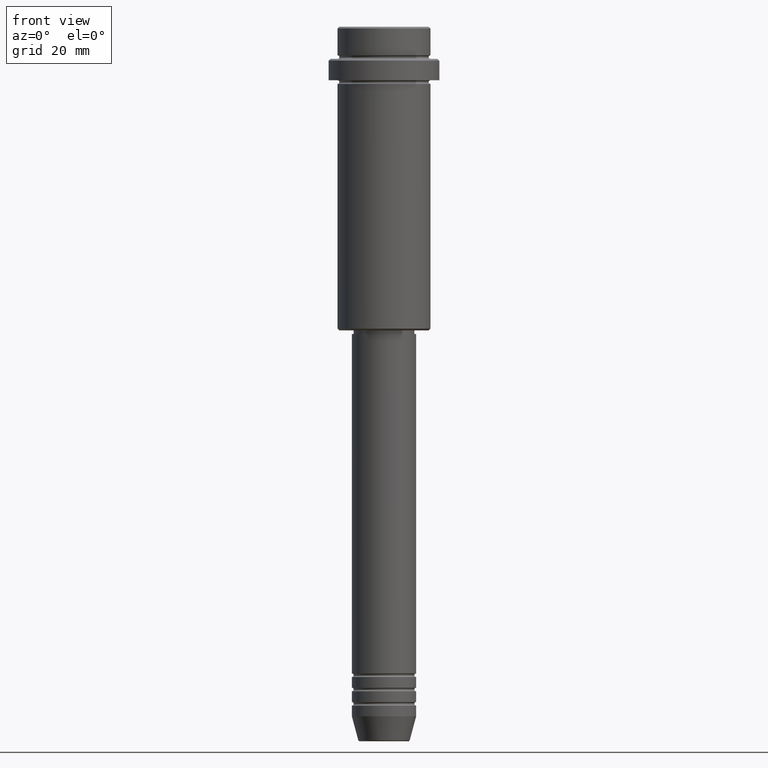
[diagram: clean part render]
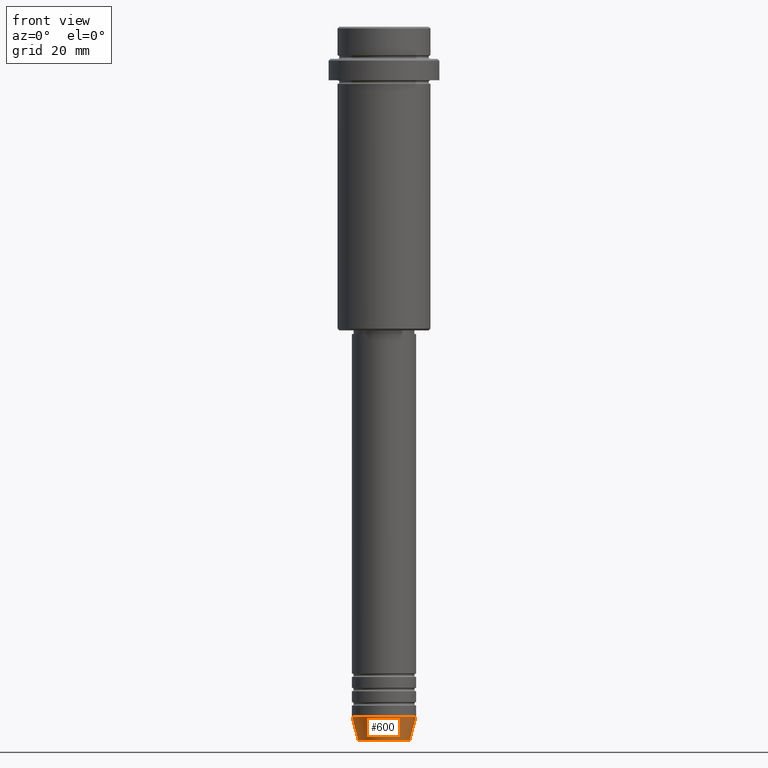
[diagram: same view with one face highlighted and labeled with its STEP entity id]
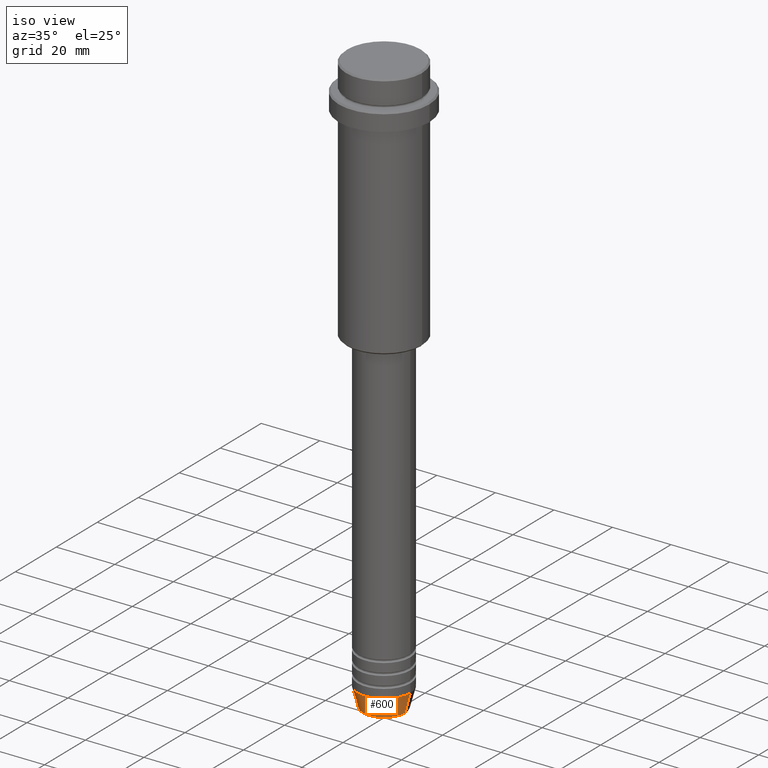
[diagram: same view with one face highlighted and labeled with its STEP entity id]
A machine part, front view. The second image highlights one B-rep face of the part: STEP entity #600.
A second angle (iso view) of the same face is appended — the face is thin or edge-on in the first view.
In plain terms, the highlighted conical surface has half-angle 15 deg.
Its self-contained STEP definition (entity closure, byte-faithful):
#47 = FACE_OUTER_BOUND ( 'NONE', #1254, .T. ) ;
#69 = ORIENTED_EDGE ( 'NONE', *, *, #789, .T. ) ;
#137 = CARTESIAN_POINT ( 'NONE',  ( -7.223655072137194821, 9.934123627281767082E-16, -199.6294095225512706 ) ) ;
#229 = EDGE_CURVE ( 'NONE', #731, #449, #576, .T. ) ;
#233 = CIRCLE ( 'NONE', #410, 7.223655072137194821 ) ;
#275 = LINE ( 'NONE', #366, #325 ) ;
#281 = CARTESIAN_POINT ( 'NONE',  ( 0.000000000000000000, 0.000000000000000000, -199.6294095225512706 ) ) ;
#325 = VECTOR ( 'NONE', #1161, 1000.000000000000114 ) ;
#331 = CONICAL_SURFACE ( 'NONE', #752, 9.000000000000000000, 0.2617993877991491303 ) ;
#340 = DIRECTION ( 'NONE',  ( -0.000000000000000000, -0.000000000000000000, 1.000000000000000000 ) ) ;
#366 = CARTESIAN_POINT ( 'NONE',  ( 9.000000000000000000, 0.000000000000000000, -193.0000000000000000 ) ) ;
#410 = AXIS2_PLACEMENT_3D ( 'NONE', #281, #1134, #914 ) ;
#414 = VECTOR ( 'NONE', #1138, 1000.000000000000114 ) ;
#436 = CARTESIAN_POINT ( 'NONE',  ( 0.000000000000000000, 0.000000000000000000, -193.0000000000000000 ) ) ;
#449 = VERTEX_POINT ( 'NONE', #1235 ) ;
#572 = DIRECTION ( 'NONE',  ( 1.000000000000000000, 0.000000000000000000, 0.000000000000000000 ) ) ;
#576 = LINE ( 'NONE', #709, #414 ) ;
#600 = ADVANCED_FACE ( 'NONE', ( #47 ), #331, .T. ) ;
#627 = CARTESIAN_POINT ( 'NONE',  ( 0.000000000000000000, 0.000000000000000000, -193.0000000000000000 ) ) ;
#709 = CARTESIAN_POINT ( 'NONE',  ( -9.000000000000000000, 1.102182119232617714E-15, -193.0000000000000000 ) ) ;
#712 = DIRECTION ( 'NONE',  ( -0.000000000000000000, -0.000000000000000000, 1.000000000000000000 ) ) ;
#731 = VERTEX_POINT ( 'NONE', #137 ) ;
#752 = AXIS2_PLACEMENT_3D ( 'NONE', #627, #712, #1370 ) ;
#760 = EDGE_CURVE ( 'NONE', #449, #1048, #793, .T. ) ;
#761 = CARTESIAN_POINT ( 'NONE',  ( 9.000000000000000000, 0.000000000000000000, -193.0000000000000000 ) ) ;
#766 = EDGE_CURVE ( 'NONE', #731, #933, #233, .T. ) ;
#789 = EDGE_CURVE ( 'NONE', #933, #1048, #275, .T. ) ;
#793 = CIRCLE ( 'NONE', #1330, 9.000000000000000000 ) ;
#864 = ORIENTED_EDGE ( 'NONE', *, *, #760, .F. ) ;
#914 = DIRECTION ( 'NONE',  ( 1.000000000000000000, 0.000000000000000000, 0.000000000000000000 ) ) ;
#933 = VERTEX_POINT ( 'NONE', #1384 ) ;
#967 = ORIENTED_EDGE ( 'NONE', *, *, #766, .T. ) ;
#989 = ORIENTED_EDGE ( 'NONE', *, *, #229, .F. ) ;
#1048 = VERTEX_POINT ( 'NONE', #761 ) ;
#1134 = DIRECTION ( 'NONE',  ( -0.000000000000000000, -0.000000000000000000, 1.000000000000000000 ) ) ;
#1138 = DIRECTION ( 'NONE',  ( -0.2588190451025205174, 3.169619151431761243E-17, 0.9659258262890684232 ) ) ;
#1161 = DIRECTION ( 'NONE',  ( 0.2588190451025205174, 0.000000000000000000, 0.9659258262890684232 ) ) ;
#1235 = CARTESIAN_POINT ( 'NONE',  ( -9.000000000000000000, 1.102182119232617714E-15, -193.0000000000000000 ) ) ;
#1254 = EDGE_LOOP ( 'NONE', ( #989, #967, #69, #864 ) ) ;
#1330 = AXIS2_PLACEMENT_3D ( 'NONE', #436, #340, #572 ) ;
#1370 = DIRECTION ( 'NONE',  ( 1.000000000000000000, 0.000000000000000000, 0.000000000000000000 ) ) ;
#1384 = CARTESIAN_POINT ( 'NONE',  ( 7.223655072137194821, 0.000000000000000000, -199.6294095225512706 ) ) ;